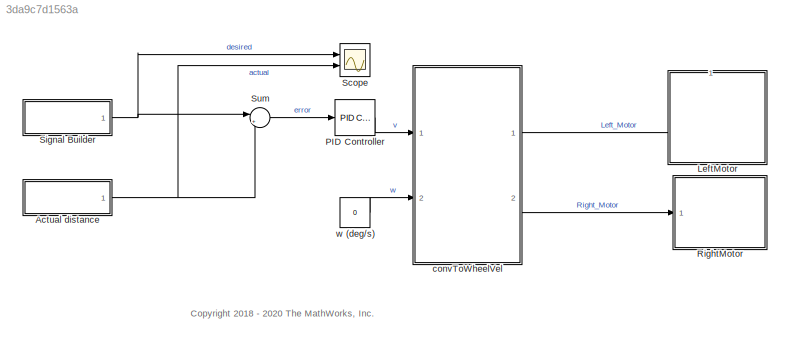
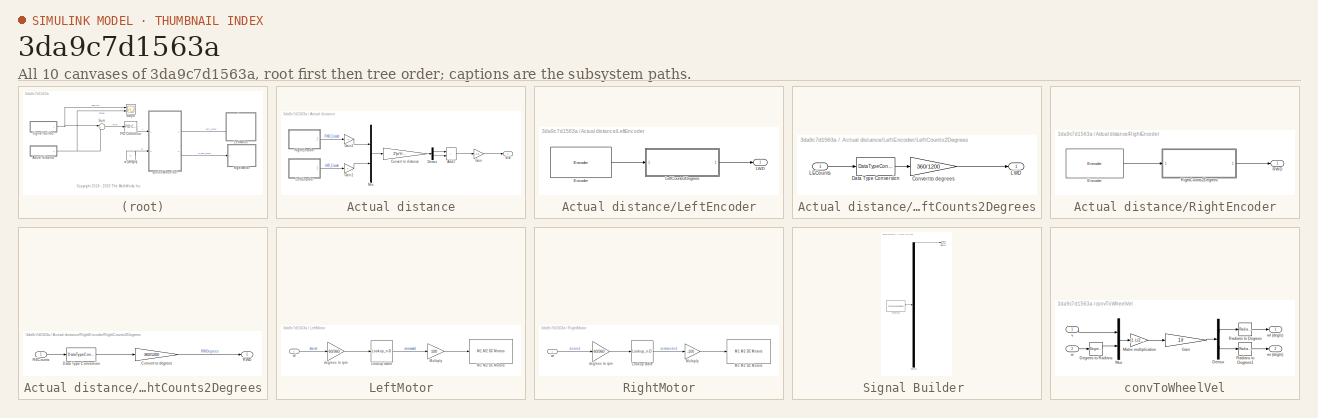
[diagram: thumbnail index - all 10 canvases of the model, root first then tree order]
MODEL slx_3da9c7d1563a
KIND model
CONFIG AbsTol = auto
CONFIG EnableMultiTasking = on
CONFIG FixedStep = TS
CONFIG MaxStep = auto
CONFIG MinStep = auto
CONFIG PostLoadFcn = paramsBasicKinematics\nload('motorResponse.mat')
CONFIG RelTol = 1e-3
CONFIG SampleTimeConstraint = Unconstrained
CONFIG Solver = FixedStepAuto
CONFIG SolverName = FixedStepAuto
CONFIG StartTime = 0.0
CONFIG StopTime = 30
WORKSPACE source: mxarray member
WORKSPACE TS = 0.01
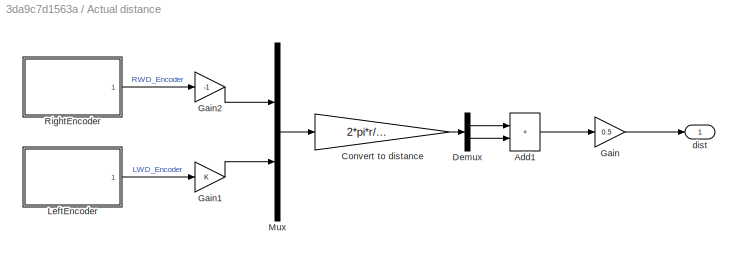
BLOCK [SubSystem] Actual distance
  Ports = [0, 1]
  RequestExecContextInheritance = off
BLOCK [Sum] Actual distance/Add1
  IconShape = rectangular
  Ports = [2, 1]
BLOCK [Gain] Actual distance/Convert to distance
  Gain = 2*pi*r/360
BLOCK [Demux] Actual distance/Demux
  Outputs = 2
  Ports = [1, 2]
BLOCK [Gain] Actual distance/Gain
  Gain = 0.5
BLOCK [Gain] Actual distance/Gain1
BLOCK [Gain] Actual distance/Gain2
  Gain = -1
BLOCK [SubSystem] Actual distance/LeftEncoder
  Ports = [0, 1]
  RequestExecContextInheritance = off
BLOCK [Reference] Actual distance/LeftEncoder/Encoder  REF=arduinomotorcarrierlib/Encoder
  Ports = [0, 1]
  SourceBlock = arduinomotorcarrierlib/Encoder
  SourceProductBaseCode = ARDUINO
  SourceType = motorcarrier.blocks.mkrmotorcarrier_Encoder
BLOCK [Outport] Actual distance/LeftEncoder/LWD
  VectorParamsAs1DForOutWhenUnconnected = off
BLOCK [SubSystem] Actual distance/LeftEncoder/LeftCounts2Degrees
  Ports = [1, 1]
  RequestExecContextInheritance = off
BLOCK [Gain] Actual distance/LeftEncoder/LeftCounts2Degrees/Convert to degrees
  Gain = 360/1200
BLOCK [DataTypeConversion] Actual distance/LeftEncoder/LeftCounts2Degrees/Data Type Conversion
  OutDataTypeStr = double
  RndMeth = Floor
  SaturateOnIntegerOverflow = off
BLOCK [Inport] Actual distance/LeftEncoder/LeftCounts2Degrees/LECounts
BLOCK [Outport] Actual distance/LeftEncoder/LeftCounts2Degrees/LWD
  VectorParamsAs1DForOutWhenUnconnected = off
BLOCK [Mux] Actual distance/Mux
  DisplayOption = bar
  Inputs = 2
  Ports = [2, 1]
BLOCK [SubSystem] Actual distance/RightEncoder
  Ports = [0, 1]
  RequestExecContextInheritance = off
BLOCK [Reference] Actual distance/RightEncoder/Encoder  REF=arduinomotorcarrierlib/Encoder
  Ports = [0, 1]
  SourceBlock = arduinomotorcarrierlib/Encoder
  SourceProductBaseCode = ARDUINO
  SourceType = motorcarrier.blocks.mkrmotorcarrier_Encoder
BLOCK [Outport] Actual distance/RightEncoder/RWD
  VectorParamsAs1DForOutWhenUnconnected = off
BLOCK [SubSystem] Actual distance/RightEncoder/RightCounts2Degrees
  Ports = [1, 1]
  RequestExecContextInheritance = off
BLOCK [Gain] Actual distance/RightEncoder/RightCounts2Degrees/Convert to degrees
  Gain = 360/1200
BLOCK [DataTypeConversion] Actual distance/RightEncoder/RightCounts2Degrees/Data Type Conversion
  OutDataTypeStr = double
  RndMeth = Floor
  SaturateOnIntegerOverflow = off
BLOCK [Inport] Actual distance/RightEncoder/RightCounts2Degrees/RECounts
BLOCK [Outport] Actual distance/RightEncoder/RightCounts2Degrees/RWD
  VectorParamsAs1DForOutWhenUnconnected = off
BLOCK [Outport] Actual distance/dist
  VectorParamsAs1DForOutWhenUnconnected = off
BLOCK [SubSystem] LeftMotor
  NameLocation = left
  PortSchema = {"entries":[{"content":{"sides":[{"content":{"connectorIds":[]},"type":"ConnectorPlacement.EquallySpacedRectSide","uuid":"6b240029-b7b2-4aa8-8af5-bcdc90edccb3"},{"content":{"connectorIds":[],"side":"RIGHT"},"type":"ConnectorPlacement.EquallySpacedRectSide","uuid":"1a2d11e5-5b26-4193-8988-f8fe1e33b39d"},{"content":{"connectorIds":[],"side":"TOP"},"type":"ConnectorPlacement.EquallySpacedRectSide","u...<+380ch>
  Ports = [1]
  RequestExecContextInheritance = off
BLOCK [Lookup_n-D] LeftMotor/Lookup table
  BreakpointsForDimension1 = speedMono_L
  InternalRulePriority = Speed
  NumberOfTableDimensions = 1
  Ports = [1, 1]
  RndMeth = Simplest
  Table = PWMcmdMono_L
  UseLastTableValue = on
BLOCK [Reference] LeftMotor/M1 M2 DC Motors  REF=arduinomotorcarrierlib/M1 M2 DC Motors
  Ports = [1]
  SourceBlock = arduinomotorcarrierlib/M1 M2 DC Motors
  SourceProductName = Simulink Support Package for Arduino Hardware
  SourceType = DC Motor
BLOCK [Gain] LeftMotor/Multiply
  Gain = 100
BLOCK [Gain] LeftMotor/deg//sec to rpm
  Gain = 60/360
BLOCK [Inport] LeftMotor/wl
BLOCK [Reference] PID Controller   REF=simulink/Continuous/PID Controller
  Ports = [1, 1]
  SourceBlock = simulink/Continuous/PID Controller
  SourceProductBaseCode = SL
  SourceType = PID 1dof
BLOCK [SubSystem] RightMotor
  Ports = [1]
  RequestExecContextInheritance = off
BLOCK [Lookup_n-D] RightMotor/Lookup table
  BreakpointsForDimension1 = speedMono_R
  InternalRulePriority = Speed
  NumberOfTableDimensions = 1
  Ports = [1, 1]
  RndMeth = Simplest
  Table = PWMcmdMono_R
  UseLastTableValue = on
BLOCK [Reference] RightMotor/M1 M2 DC Motors  REF=arduinomotorcarrierlib/M1 M2 DC Motors
  Ports = [1]
  SourceBlock = arduinomotorcarrierlib/M1 M2 DC Motors
  SourceProductName = Simulink Support Package for Arduino Hardware
  SourceType = DC Motor
BLOCK [Gain] RightMotor/Multiply
  Gain = -100
BLOCK [Gain] RightMotor/deg//sec to rpm
  Gain = 60/360
BLOCK [Inport] RightMotor/wr
BLOCK [Scope] Scope
  Floating = off
  NumInputPorts = 2
  Ports = [2]
  ScopeSpecificationString = Simulink.scopes.TimeScopeBlockCfg('CurrentConfiguration', extmgr.ConfigurationSet(extmgr.Configuration('Core','General UI',true),extmgr.Configuration('Core','Source UI',true),extmgr.Configuration('Sources','WiredSimulink',true,'DataLoggingVariableName','ScopeData1'),extmgr.Configuration('Visuals','Time Domain',true,'SerializedDisplays',{struct('MinYLimReal','-25.391','MaxYLimReal','228.519','YLabe...<+2322ch>
BLOCK [SubSystem] Signal Builder 
  ClipboardFcn = sigbuilder_block('clipboard');
  CloseFcn = sigbuilder_block('close');
  ContinueFcn = sigbuilder_block('continue');
  CopyFcn = sigbuilder_block('copy');
  DeleteFcn = sigbuilder_block('delete');
  LoadFcn = sigbuilder_block('load');
  MaskHideContents = on
  ModelCloseFcn = sigbuilder_block('modelClose');
  NameChangeFcn = sigbuilder_block('namechange');
  OpenFcn = sigbuilder_block('open',[5.25 125.25 660.75 283.5 ]);
  PauseFcn = sigbuilder_block('pause');
  Ports = [0, 1]
  PreSaveFcn = sigbuilder_block('preSave');
  RequestExecContextInheritance = off
  StartFcn = sigbuilder_block('start');
  StopFcn = sigbuilder_block('stop');
  Tag = STV Subsys
BLOCK [Demux] Signal Builder /Demux
  DisplayOption = none
  Outputs = 1
  Ports = [1, 1]
  Tag = STV Demux
BLOCK [FromWorkspace] Signal Builder /FromWs
  Tag = STV FromWs
  VariableName = tuvar
BLOCK [Outport] Signal Builder /Signal 1
  Tag = STV Outport
  VectorParamsAs1DForOutWhenUnconnected = off
BLOCK [Sum] Sum
  Inputs = |+-
  Ports = [2, 1]
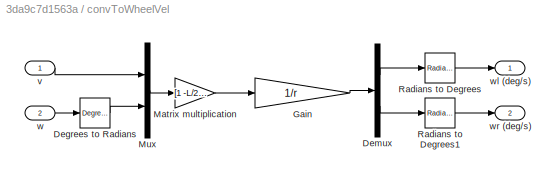
BLOCK [SubSystem] convToWheelVel
  Ports = [2, 2]
  RequestExecContextInheritance = off
BLOCK [Gain] convToWheelVel/ Gain
  Gain = 1/r
  Multiplication = Matrix(K*u)
BLOCK [Reference] convToWheelVel/Degrees to Radians  REF=simulink_extras/Transformations/Degrees to
Radians
  Ports = [1, 1]
  SourceBlock = simulink_extras/Transformations/Degrees to\nRadians
  SourceProductBaseCode = SL
  SourceType = DegreesToRadians
BLOCK [Demux] convToWheelVel/Demux
  Outputs = 2
  Ports = [1, 2]
BLOCK [Gain] convToWheelVel/Matrix multiplication
  Gain = [1 -L/2; 1 L/2]
  Multiplication = Matrix(K*u)
BLOCK [Mux] convToWheelVel/Mux
  DisplayOption = bar
  Inputs = 2
  Ports = [2, 1]
BLOCK [Reference] convToWheelVel/Radians to Degrees  REF=simulink_extras/Transformations/Radians
to Degrees
  Ports = [1, 1]
  SourceBlock = simulink_extras/Transformations/Radians\nto Degrees
  SourceProductBaseCode = SL
  SourceType = RadiansToDegrees
BLOCK [Reference] convToWheelVel/Radians to Degrees1  REF=simulink_extras/Transformations/Radians
to Degrees
  Ports = [1, 1]
  SourceBlock = simulink_extras/Transformations/Radians\nto Degrees
  SourceProductBaseCode = SL
  SourceType = RadiansToDegrees
BLOCK [Inport] convToWheelVel/v
BLOCK [Inport] convToWheelVel/w
  Port = 2
BLOCK [Outport] convToWheelVel/wl (deg//s)
  VectorParamsAs1DForOutWhenUnconnected = off
BLOCK [Outport] convToWheelVel/wr (deg//s)
  Port = 2
  VectorParamsAs1DForOutWhenUnconnected = off
BLOCK [Constant] w (deg//s)
  Value = 0
ANNOTATION (root): <copyright redacted>
LINE Actual distance/Add1:1 -> Actual distance/Gain:1
LINE Actual distance/Convert to distance:1 -> Actual distance/Demux:1
LINE Actual distance/Demux:1 -> Actual distance/Add1:1
LINE Actual distance/Demux:2 -> Actual distance/Add1:2
LINE Actual distance/Gain1:1 -> Actual distance/Mux:2
LINE Actual distance/Gain2:1 -> Actual distance/Mux:1
LINE Actual distance/Gain:1 -> Actual distance/dist:1
LINE Actual distance/LeftEncoder/Encoder:1 -> Actual distance/LeftEncoder/LeftCounts2Degrees:1
LINE Actual distance/LeftEncoder/LeftCounts2Degrees/Convert to degrees:1 -> Actual distance/LeftEncoder/LeftCounts2Degrees/LWD:1
LINE Actual distance/LeftEncoder/LeftCounts2Degrees/Data Type Conversion:1 -> Actual distance/LeftEncoder/LeftCounts2Degrees/Convert to degrees:1
LINE Actual distance/LeftEncoder/LeftCounts2Degrees/LECounts:1 -> Actual distance/LeftEncoder/LeftCounts2Degrees/Data Type Conversion:1
LINE Actual distance/LeftEncoder/LeftCounts2Degrees:1 -> Actual distance/LeftEncoder/LWD:1
LINE Actual distance/LeftEncoder:1 -> Actual distance/Gain1:1
LINE Actual distance/Mux:1 -> Actual distance/Convert to distance:1
LINE Actual distance/RightEncoder/Encoder:1 -> Actual distance/RightEncoder/RightCounts2Degrees:1
LINE Actual distance/RightEncoder/RightCounts2Degrees/Convert to degrees:1 -> Actual distance/RightEncoder/RightCounts2Degrees/RWD:1
LINE Actual distance/RightEncoder/RightCounts2Degrees/Data Type Conversion:1 -> Actual distance/RightEncoder/RightCounts2Degrees/Convert to degrees:1
LINE Actual distance/RightEncoder/RightCounts2Degrees/RECounts:1 -> Actual distance/RightEncoder/RightCounts2Degrees/Data Type Conversion:1
LINE Actual distance/RightEncoder/RightCounts2Degrees:1 -> Actual distance/RightEncoder/RWD:1
LINE Actual distance/RightEncoder:1 -> Actual distance/Gain2:1
NET Actual distance:1 -> Scope:2, Sum:2
LINE LeftMotor/Lookup table:1 -> LeftMotor/Multiply:1
LINE LeftMotor/Multiply:1 -> LeftMotor/M1 M2 DC Motors:1
LINE LeftMotor/deg//sec to rpm:1 -> LeftMotor/Lookup table:1
LINE LeftMotor/wl:1 -> LeftMotor/deg//sec to rpm:1
LINE PID Controller :1 -> convToWheelVel:1
LINE RightMotor/Lookup table:1 -> RightMotor/Multiply:1
LINE RightMotor/Multiply:1 -> RightMotor/M1 M2 DC Motors:1
LINE RightMotor/deg//sec to rpm:1 -> RightMotor/Lookup table:1
LINE RightMotor/wr:1 -> RightMotor/deg//sec to rpm:1
NET Signal Builder :1 -> Scope:1, Sum:1
LINE Sum:1 -> PID Controller :1
LINE convToWheelVel/ Gain:1 -> convToWheelVel/Demux:1
LINE convToWheelVel/Degrees to Radians:1 -> convToWheelVel/Mux:2
LINE convToWheelVel/Demux:1 -> convToWheelVel/Radians to Degrees:1
LINE convToWheelVel/Demux:2 -> convToWheelVel/Radians to Degrees1:1
LINE convToWheelVel/Matrix multiplication:1 -> convToWheelVel/ Gain:1
LINE convToWheelVel/Mux:1 -> convToWheelVel/Matrix multiplication:1
LINE convToWheelVel/Radians to Degrees1:1 -> convToWheelVel/wr (deg//s):1
LINE convToWheelVel/Radians to Degrees:1 -> convToWheelVel/wl (deg//s):1
LINE convToWheelVel/v:1 -> convToWheelVel/Mux:1
LINE convToWheelVel/w:1 -> convToWheelVel/Degrees to Radians:1
LINE convToWheelVel:1 -> LeftMotor:1
LINE convToWheelVel:2 -> RightMotor:1
LINE w (deg//s):1 -> convToWheelVel:2
note: NET lines group one-source signal fan-out (src -> all destinations, sorted); 1:1 wires keep LINE
